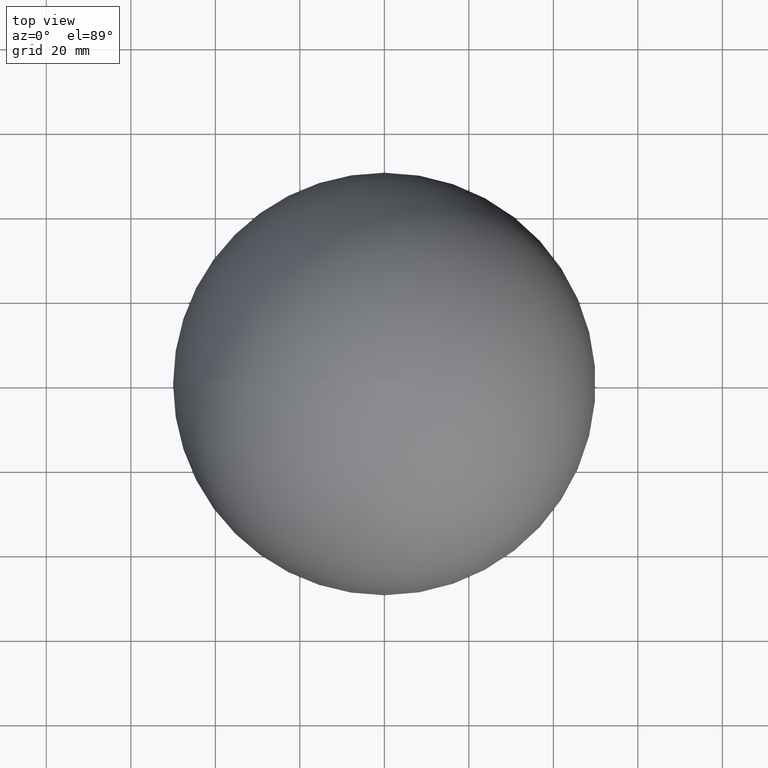
[diagram: clean part render]
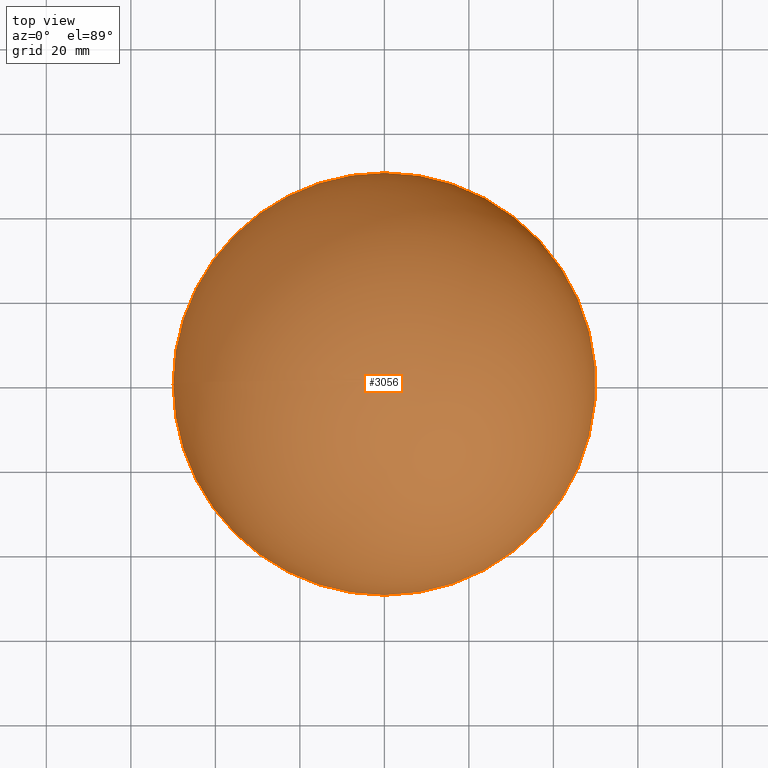
[diagram: same view with one face highlighted and labeled with its STEP entity id]
A machine part, top view. The second image highlights one B-rep face of the part: STEP entity #3056.
In plain terms, the highlighted spherical surface has radius 50 mm.
Its self-contained STEP definition (entity closure, byte-faithful):
#615 = EDGE_LOOP ( 'NONE', ( #8284, #5296 ) ) ;
#714 = CARTESIAN_POINT ( 'NONE',  ( 0.0000000000000000000, 0.0000000000000000000, 0.0000000000000000000 ) ) ;
#1297 = CARTESIAN_POINT ( 'NONE',  ( 0.0000000000000000000, 0.0000000000000000000, 0.0000000000000000000 ) ) ;
#1715 = DIRECTION ( 'NONE',  ( -0.0000000000000000000, 0.0000000000000000000, -1.000000000000000000 ) ) ;
#1731 = CARTESIAN_POINT ( 'NONE',  ( 3.061616997868488000E-015, 50.00000000000000000, 0.0000000000000000000 ) ) ;
#2177 = DIRECTION ( 'NONE',  ( 1.000000000000000000, 0.0000000000000000000, 1.224646799147353200E-016 ) ) ;
#2781 = FACE_OUTER_BOUND ( 'NONE', #615, .T. ) ;
#3056 = ADVANCED_FACE ( 'NONE', ( #2781 ), #6269, .T. ) ;
#3087 = CARTESIAN_POINT ( 'NONE',  ( 0.0000000000000000000, 0.0000000000000000000, 0.0000000000000000000 ) ) ;
#3437 = EDGE_CURVE ( 'NONE', #7973, #7033, #5606, .T. ) ;
#4189 = DIRECTION ( 'NONE',  ( 0.0000000000000000000, 0.0000000000000000000, 1.000000000000000000 ) ) ;
#4597 = AXIS2_PLACEMENT_3D ( 'NONE', #714, #4189, #5619 ) ;
#4889 = DIRECTION ( 'NONE',  ( -1.224646799147353200E-016, 1.499759782661883300E-032, 1.000000000000000000 ) ) ;
#5296 = ORIENTED_EDGE ( 'NONE', *, *, #3437, .T. ) ;
#5311 = AXIS2_PLACEMENT_3D ( 'NONE', #3087, #1715, #7822 ) ;
#5533 = EDGE_CURVE ( 'NONE', #7973, #7033, #7967, .T. ) ;
#5606 = CIRCLE ( 'NONE', #8646, 50.00000000000000000 ) ;
#5619 = DIRECTION ( 'NONE',  ( -1.000000000000000000, 1.224646799147374200E-016, 0.0000000000000000000 ) ) ;
#6269 = SPHERICAL_SURFACE ( 'NONE', #4597, 50.00000000000000000 ) ;
#6871 = CARTESIAN_POINT ( 'NONE',  ( -9.184850993605254400E-015, -50.00000000000000000, 0.0000000000000000000 ) ) ;
#7033 = VERTEX_POINT ( 'NONE', #1731 ) ;
#7822 = DIRECTION ( 'NONE',  ( -1.000000000000000000, 0.0000000000000000000, 0.0000000000000000000 ) ) ;
#7967 = CIRCLE ( 'NONE', #5311, 50.00000000000000000 ) ;
#7973 = VERTEX_POINT ( 'NONE', #6871 ) ;
#8284 = ORIENTED_EDGE ( 'NONE', *, *, #5533, .F. ) ;
#8646 = AXIS2_PLACEMENT_3D ( 'NONE', #1297, #4889, #2177 ) ;